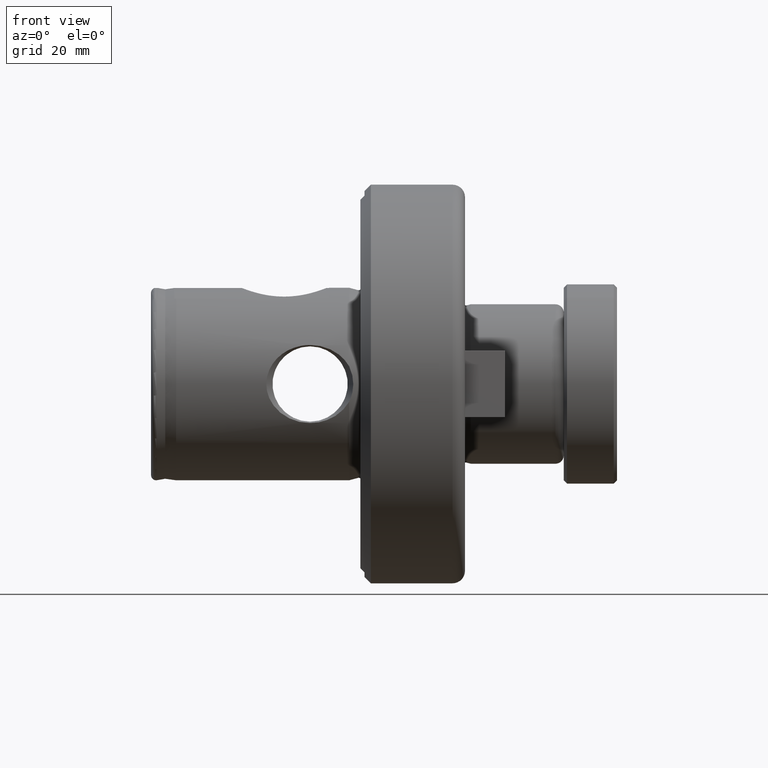
[diagram: clean part render]
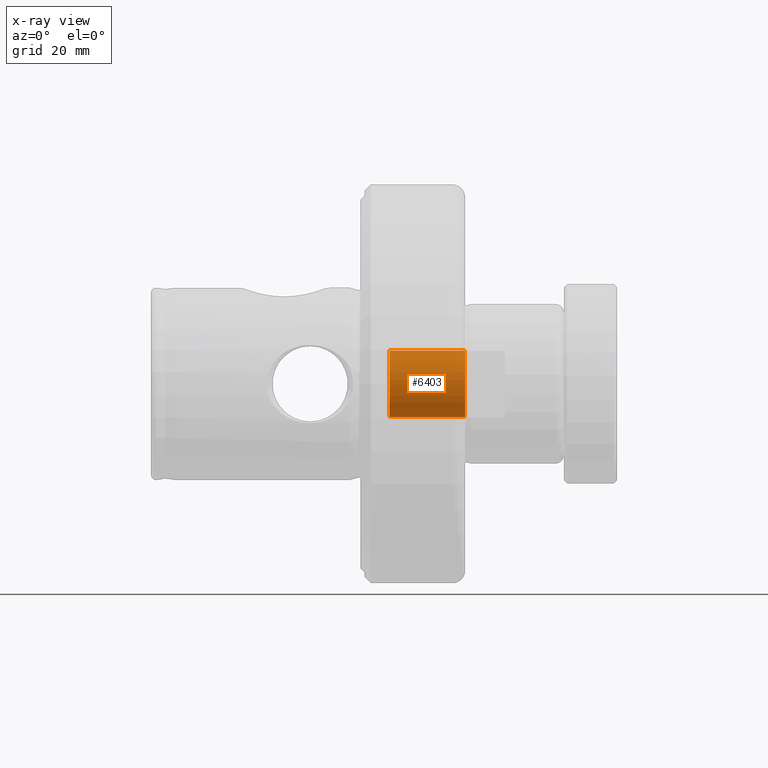
[diagram: x-ray — body ghosted, one internal face saturated and labeled with its STEP entity id]
A machine part, front view, then the same camera in x-ray: the body is ghosted and one INTERNAL B-rep face — a face not visible from any outside direction — is saturated and labeled: STEP entity #6403.
In plain terms, the highlighted cylindrical surface (edge-blend (fillet) strip) has radius 7.9375 mm, axis along (1, 0, 0).
Its self-contained STEP definition (entity closure, byte-faithful):
#51 = CARTESIAN_POINT ( 'NONE',  ( 56.99999999999997900, 33.34000000000000300, 0.0000000000000000000 ) ) ;
#52 = CARTESIAN_POINT ( 'NONE',  ( 74.99999999999998600, 33.34000000000000300, 7.937499999999983100 ) ) ;
#53 = DIRECTION ( 'NONE',  ( 1.000000000000000000, -0.0000000000000000000, -0.0000000000000000000 ) ) ;
#54 = CARTESIAN_POINT ( 'NONE',  ( 74.99999999999998600, 33.34000000000000300, 0.0000000000000000000 ) ) ;
#56 = DIRECTION ( 'NONE',  ( 1.000000000000000000, -0.0000000000000000000, -0.0000000000000000000 ) ) ;
#57 = DIRECTION ( 'NONE',  ( 0.0000000000000000000, 0.0000000000000000000, -1.000000000000000000 ) ) ;
#58 = DIRECTION ( 'NONE',  ( 1.000000000000000000, -0.0000000000000000000, -0.0000000000000000000 ) ) ;
#59 = DIRECTION ( 'NONE',  ( 0.0000000000000000000, 0.0000000000000000000, -1.000000000000000000 ) ) ;
#599 = DIRECTION ( 'NONE',  ( 1.000000000000000000, -0.0000000000000000000, -0.0000000000000000000 ) ) ;
#603 = DIRECTION ( 'NONE',  ( 0.0000000000000000000, 0.0000000000000000000, -1.000000000000000000 ) ) ;
#605 = CARTESIAN_POINT ( 'NONE',  ( 74.99999999999998600, 33.34000000000000300, 0.0000000000000000000 ) ) ;
#870 = LINE ( 'NONE', #52, #873 ) ;
#873 = VECTOR ( 'NONE', #53, 1000.000000000000000 ) ;
#879 = CIRCLE ( 'NONE', #7163, 7.937499999999979600 ) ;
#880 = CIRCLE ( 'NONE', #7165, 7.937499999999985800 ) ;
#1198 = FACE_OUTER_BOUND ( 'NONE', #6863, .T. ) ;
#1200 = CYLINDRICAL_SURFACE ( 'NONE', #7341, 7.937499999999983100 ) ;
#1973 = ORIENTED_EDGE ( 'NONE', *, *, #4813, .F. ) ;
#1974 = ORIENTED_EDGE ( 'NONE', *, *, #4811, .T. ) ;
#1976 = ORIENTED_EDGE ( 'NONE', *, *, #4812, .T. ) ;
#1977 = ORIENTED_EDGE ( 'NONE', *, *, #6433, .F. ) ;
#4393 = VERTEX_POINT ( 'NONE', #5847 ) ;
#4508 = VERTEX_POINT ( 'NONE', #5962 ) ;
#4633 = VERTEX_POINT ( 'NONE', #6087 ) ;
#4636 = VERTEX_POINT ( 'NONE', #6090 ) ;
#4811 = EDGE_CURVE ( 'NONE', #4636, #4393, #870, .T. ) ;
#4812 = EDGE_CURVE ( 'NONE', #4393, #4508, #879, .T. ) ;
#4813 = EDGE_CURVE ( 'NONE', #4636, #4633, #880, .T. ) ;
#5847 = CARTESIAN_POINT ( 'NONE',  ( 74.99999999999998600, 33.34000000000000300, 7.937499999999979600 ) ) ;
#5962 = CARTESIAN_POINT ( 'NONE',  ( 74.99999999999998600, 33.34000000000000300, -7.937499999999979600 ) ) ;
#6087 = CARTESIAN_POINT ( 'NONE',  ( 56.99999999999997900, 33.34000000000000300, -7.937499999999985800 ) ) ;
#6090 = CARTESIAN_POINT ( 'NONE',  ( 56.99999999999997900, 33.34000000000000300, 7.937499999999985800 ) ) ;
#6403 = ADVANCED_FACE ( 'NONE', ( #1198 ), #1200, .F. ) ;
#6433 = EDGE_CURVE ( 'NONE', #4633, #4508, #7448, .T. ) ;
#6863 = EDGE_LOOP ( 'NONE', ( #1973, #1974, #1976, #1977 ) ) ;
#7163 = AXIS2_PLACEMENT_3D ( 'NONE', #54, #56, #57 ) ;
#7165 = AXIS2_PLACEMENT_3D ( 'NONE', #51, #58, #59 ) ;
#7341 = AXIS2_PLACEMENT_3D ( 'NONE', #605, #599, #603 ) ;
#7447 = VECTOR ( 'NONE', #8021, 1000.000000000000000 ) ;
#7448 = LINE ( 'NONE', #8020, #7447 ) ;
#8020 = CARTESIAN_POINT ( 'NONE',  ( 74.99999999999998600, 33.34000000000000300, -7.937499999999983100 ) ) ;
#8021 = DIRECTION ( 'NONE',  ( 1.000000000000000000, -0.0000000000000000000, -0.0000000000000000000 ) ) ;